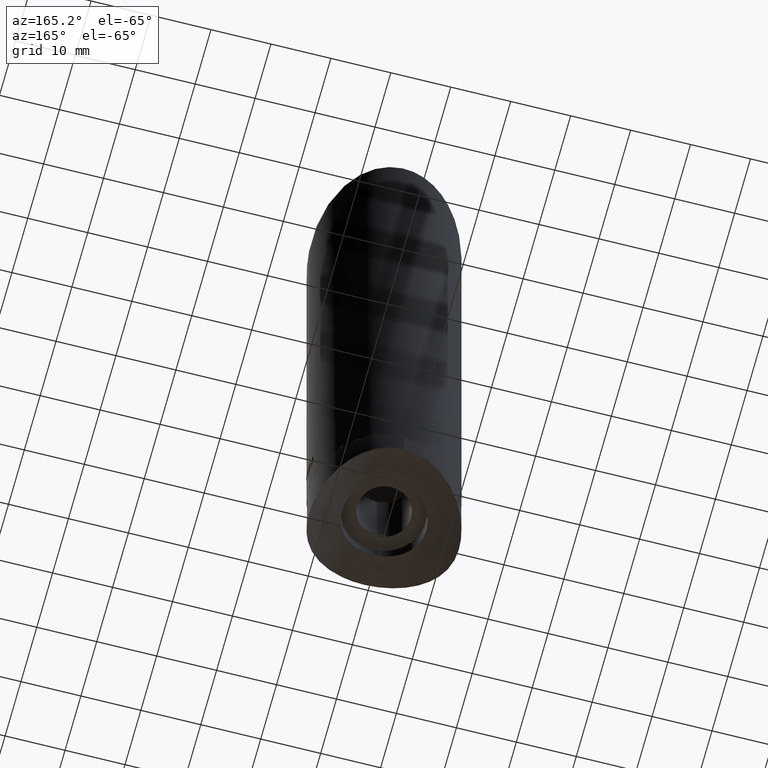
[diagram: clean part render]
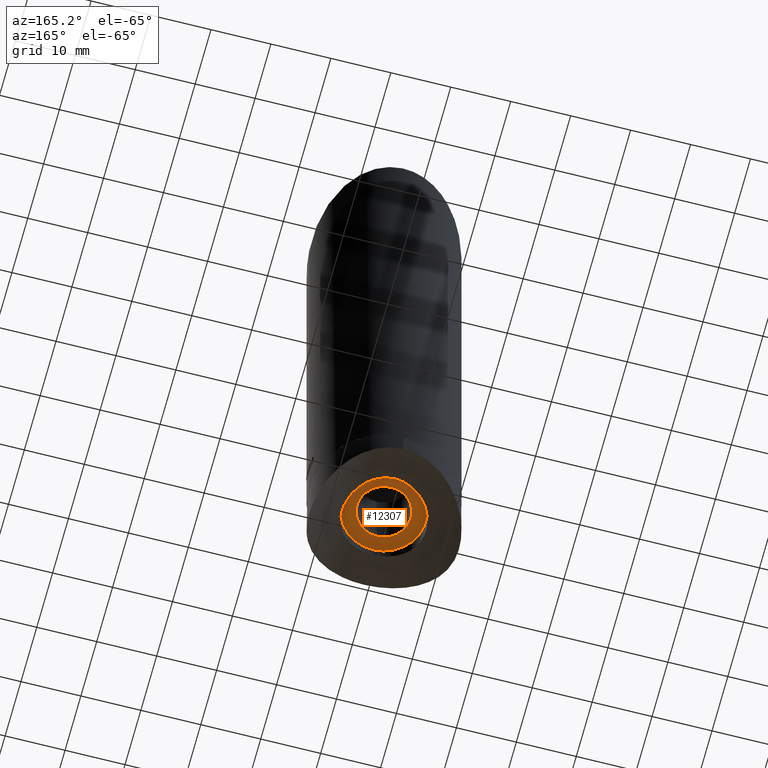
[diagram: same view with one face highlighted and labeled with its STEP entity id]
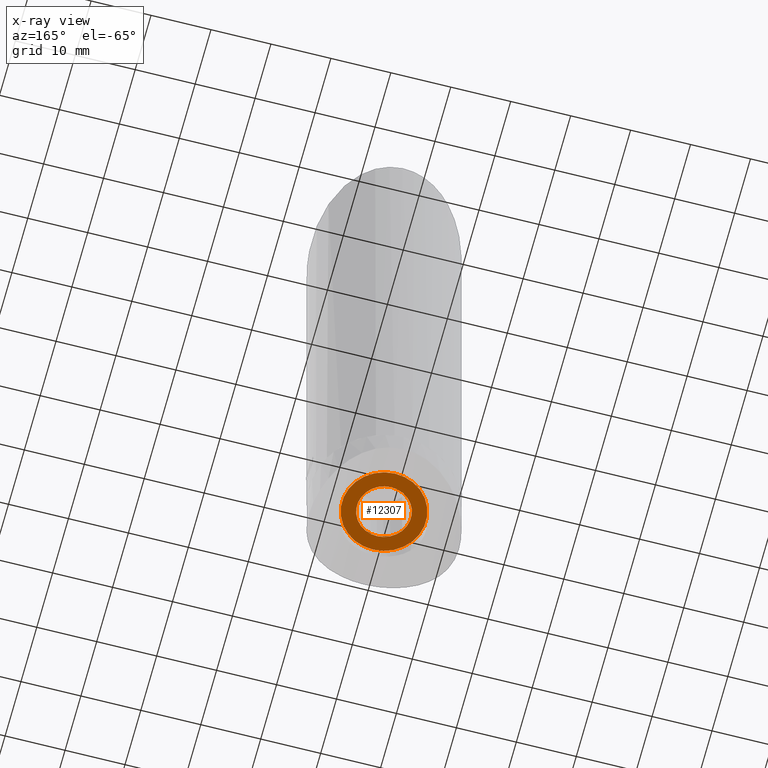
[diagram: x-ray of the same camera — body ghosted, the highlighted face saturated]
A machine part, auxiliary view. The second image highlights one B-rep face of the part: STEP entity #12307.
The next image is the same camera in x-ray: the body ghosted, the highlighted face saturated — about 0% of this face is hidden behind the body in this view.
In plain terms, the highlighted planar face has unit normal (0, 0, 1).
Its self-contained STEP definition (entity closure, byte-faithful):
#254 = DIRECTION ( 'NONE',  ( -1.905692200961614700E-032, 0.0000000000000000000, 1.000000000000000000 ) ) ;
#528 = VERTEX_POINT ( 'NONE', #12357 ) ;
#774 = EDGE_CURVE ( 'NONE', #12657, #1624, #14159, .T. ) ;
#1160 = CARTESIAN_POINT ( 'NONE',  ( 5.510910596163089600E-016, -2.500000000000000400, -4.500000000000000000 ) ) ;
#1624 = VERTEX_POINT ( 'NONE', #10804 ) ;
#1851 = AXIS2_PLACEMENT_3D ( 'NONE', #11046, #2923, #254 ) ;
#2383 = DIRECTION ( 'NONE',  ( 0.0000000000000000000, 1.000000000000000000, -1.479114197289397100E-031 ) ) ;
#2923 = DIRECTION ( 'NONE',  ( 0.0000000000000000000, 1.000000000000000000, -1.479114197289397100E-031 ) ) ;
#3834 = AXIS2_PLACEMENT_3D ( 'NONE', #14623, #17266, #15993 ) ;
#4770 = EDGE_CURVE ( 'NONE', #1624, #12657, #12465, .T. ) ;
#5522 = AXIS2_PLACEMENT_3D ( 'NONE', #16862, #12597, #8586 ) ;
#5811 = PLANE ( 'NONE',  #15056 ) ;
#6044 = EDGE_LOOP ( 'NONE', ( #13783, #16604 ) ) ;
#6667 = ORIENTED_EDGE ( 'NONE', *, *, #8010, .F. ) ;
#6784 = CARTESIAN_POINT ( 'NONE',  ( 1.333984540673130400E-031, -2.499999999999998700, -7.000000000000000000 ) ) ;
#7231 = CARTESIAN_POINT ( 'NONE',  ( 0.0000000000000000000, -2.500000000000000000, 3.851859888774471700E-031 ) ) ;
#7541 = CARTESIAN_POINT ( 'NONE',  ( 0.0000000000000000000, -2.499999999999998700, 3.851859888774471700E-031 ) ) ;
#8010 = EDGE_CURVE ( 'NONE', #8927, #528, #12055, .T. ) ;
#8586 = DIRECTION ( 'NONE',  ( -1.905692200961614700E-032, 0.0000000000000000000, 1.000000000000000000 ) ) ;
#8927 = VERTEX_POINT ( 'NONE', #1160 ) ;
#9879 = DIRECTION ( 'NONE',  ( -1.905692200961614700E-032, -1.479114197289397100E-031, 1.000000000000000000 ) ) ;
#10051 = AXIS2_PLACEMENT_3D ( 'NONE', #7541, #2383, #17317 ) ;
#10804 = CARTESIAN_POINT ( 'NONE',  ( 8.572527594031471200E-016, -2.499999999999998700, 7.000000000000000000 ) ) ;
#11046 = CARTESIAN_POINT ( 'NONE',  ( 0.0000000000000000000, -2.499999999999998700, 3.851859888774471700E-031 ) ) ;
#11092 = FACE_BOUND ( 'NONE', #12433, .T. ) ;
#11561 = ORIENTED_EDGE ( 'NONE', *, *, #13768, .F. ) ;
#12055 = CIRCLE ( 'NONE', #3834, 4.500000000000000000 ) ;
#12193 = CIRCLE ( 'NONE', #5522, 4.500000000000000000 ) ;
#12307 = ADVANCED_FACE ( 'NONE', ( #14705, #11092 ), #5811, .F. ) ;
#12357 = CARTESIAN_POINT ( 'NONE',  ( -8.575614904327266000E-032, -2.500000000000000400, 4.500000000000000000 ) ) ;
#12433 = EDGE_LOOP ( 'NONE', ( #11561, #6667 ) ) ;
#12465 = CIRCLE ( 'NONE', #10051, 7.000000000000000000 ) ;
#12597 = DIRECTION ( 'NONE',  ( -0.0000000000000000000, -1.000000000000000000, 1.479114197289397100E-031 ) ) ;
#12657 = VERTEX_POINT ( 'NONE', #6784 ) ;
#12810 = DIRECTION ( 'NONE',  ( -5.637472780212007000E-063, 1.000000000000000000, 1.479114197289397100E-031 ) ) ;
#13768 = EDGE_CURVE ( 'NONE', #528, #8927, #12193, .T. ) ;
#13783 = ORIENTED_EDGE ( 'NONE', *, *, #774, .F. ) ;
#14159 = CIRCLE ( 'NONE', #1851, 7.000000000000000000 ) ;
#14623 = CARTESIAN_POINT ( 'NONE',  ( 0.0000000000000000000, -2.500000000000000400, 3.851859888774471700E-031 ) ) ;
#14705 = FACE_OUTER_BOUND ( 'NONE', #6044, .T. ) ;
#15056 = AXIS2_PLACEMENT_3D ( 'NONE', #7231, #12810, #9879 ) ;
#15993 = DIRECTION ( 'NONE',  ( -1.905692200961614700E-032, 0.0000000000000000000, 1.000000000000000000 ) ) ;
#16604 = ORIENTED_EDGE ( 'NONE', *, *, #4770, .F. ) ;
#16862 = CARTESIAN_POINT ( 'NONE',  ( 0.0000000000000000000, -2.500000000000000400, 3.851859888774471700E-031 ) ) ;
#17266 = DIRECTION ( 'NONE',  ( -0.0000000000000000000, -1.000000000000000000, 1.479114197289397100E-031 ) ) ;
#17317 = DIRECTION ( 'NONE',  ( -1.905692200961614700E-032, 0.0000000000000000000, 1.000000000000000000 ) ) ;